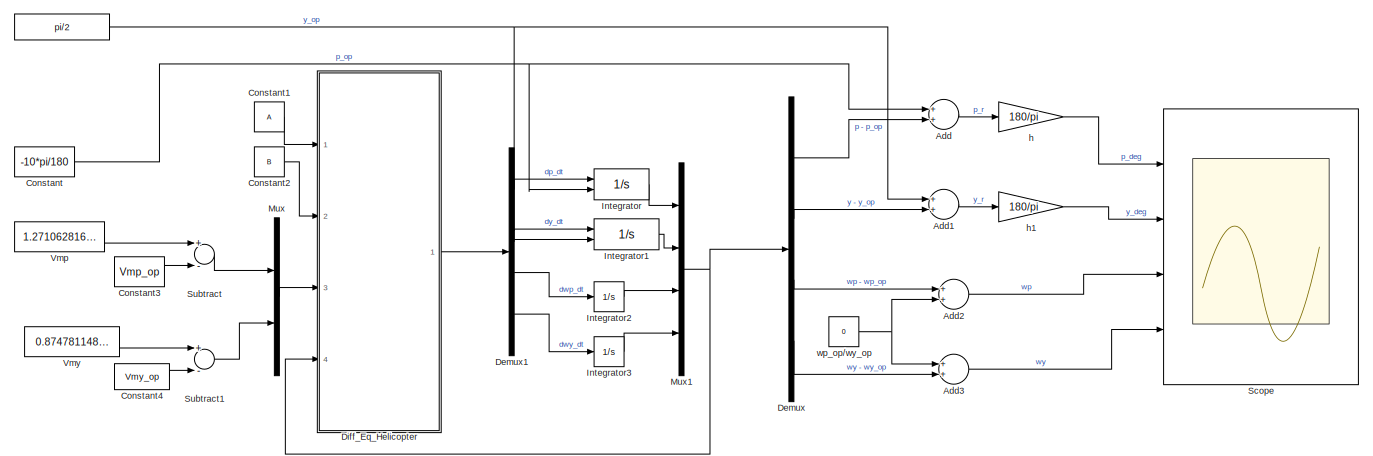
[diagram: root canvas - part 1/2, most of the canvas]
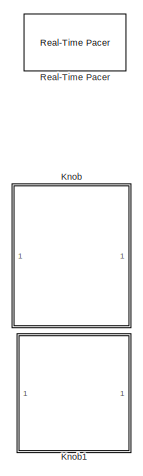
[diagram: root canvas - part 2/2, left side, full height]
MODEL slx_441fe967fca5
KIND model
CONFIG AbsTol = auto
CONFIG EnableMultiTasking = off
CONFIG FixedStep = auto
CONFIG MaxStep = auto
CONFIG MinStep = auto
CONFIG RelTol = 1e-3
CONFIG SampleTimeConstraint = Unconstrained
CONFIG Solver = VariableStepAuto
CONFIG SolverName = VariableStepAuto
CONFIG StartTime = 0.0
CONFIG StopTime = inf
BLOCK [Constant]  
  Value = pi/2
BLOCK [Sum] Add
  InputSameDT = off
  OutDataTypeStr = Inherit: Inherit via internal rule
  Ports = [2, 1]
  SaturateOnIntegerOverflow = off
BLOCK [Sum] Add1
  InputSameDT = off
  OutDataTypeStr = Inherit: Inherit via internal rule
  Ports = [2, 1]
  SaturateOnIntegerOverflow = off
BLOCK [Sum] Add2
  InputSameDT = off
  OutDataTypeStr = Inherit: Inherit via internal rule
  Ports = [2, 1]
  SaturateOnIntegerOverflow = off
BLOCK [Sum] Add3
  InputSameDT = off
  OutDataTypeStr = Inherit: Inherit via internal rule
  Ports = [2, 1]
  SaturateOnIntegerOverflow = off
BLOCK [Constant] Constant
  Value = -10*pi/180
BLOCK [Constant] Constant1
  Value = A
BLOCK [Constant] Constant2
  Value = B
BLOCK [Constant] Constant3
  Value = Vmp_op
BLOCK [Constant] Constant4
  Value = Vmy_op
BLOCK [Demux] Demux
  DisplayOption = bar
  Ports = [1, 4]
BLOCK [Demux] Demux1
  DisplayOption = bar
  Ports = [1, 4]
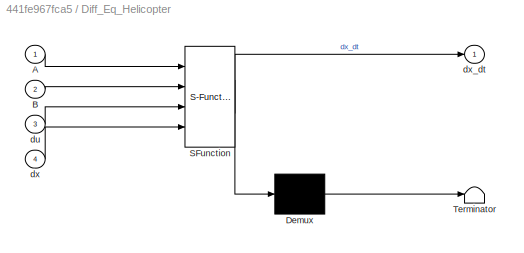
BLOCK [SubSystem] Diff_Eq_Helicopter
  ErrorFcn = Stateflow.Translate.translate
  PermitHierarchicalResolution = ExplicitOnly
  Ports = [4, 1]
  RequestExecContextInheritance = off
  SFBlockType = MATLAB Function
  TreatAsAtomicUnit = on
BLOCK [Demux] Diff_Eq_Helicopter/ Demux 
  Outputs = 1
  Ports = [1, 1]
BLOCK [S-Function] Diff_Eq_Helicopter/ SFunction 
  EnableBusSupport = on
  FunctionName = sf_sfun
  PortCounts = [4 2]
  Ports = [4, 2]
  SFcnIsStateOwnerBlock = off
  SFunctionDeploymentMode = off
  Tag = Stateflow S-Function Helicopter_linear 1
BLOCK [Terminator] Diff_Eq_Helicopter/ Terminator 
BLOCK [Inport] Diff_Eq_Helicopter/A
  IconDisplay = Port number
BLOCK [Inport] Diff_Eq_Helicopter/B
  IconDisplay = Port number
  Port = 2
BLOCK [Inport] Diff_Eq_Helicopter/du
  IconDisplay = Port number
  Port = 3
BLOCK [Inport] Diff_Eq_Helicopter/dx
  IconDisplay = Port number
  Port = 4
BLOCK [Outport] Diff_Eq_Helicopter/dx_dt
  IconDisplay = Port number
BLOCK [Integrator] Integrator
  InitialCondition = -10*pi/180
  InitialConditionSource = external
  LimitOutput = on
  LowerSaturationLimit = -pi/4 - (-10*pi/180)
  Ports = [2, 1]
  UpperSaturationLimit = pi/4 - (-10*pi/180)
BLOCK [Integrator] Integrator1
  InitialCondition = pi/2
  InitialConditionSource = external
  LimitOutput = on
  LowerSaturationLimit = 0 - (pi/2)
  Ports = [2, 1]
  UpperSaturationLimit = pi - (pi/2)
BLOCK [Integrator] Integrator2
  Ports = [1, 1]
  UpperSaturationLimit = pi
BLOCK [Integrator] Integrator3
  Ports = [1, 1]
BLOCK [SubSystem] Knob
  DialogController = hmiCreateDDGDialog
  IsWebBlock = on
  MaskHideContents = on
  Ports = []
  RequestExecContextInheritance = off
BLOCK [SubSystem] Knob1
  DialogController = hmiCreateDDGDialog
  IsWebBlock = on
  MaskHideContents = on
  Ports = []
  RequestExecContextInheritance = off
BLOCK [Mux] Mux
  DisplayOption = bar
  Inputs = 2
  Ports = [2, 1]
BLOCK [Mux] Mux1
  DisplayOption = bar
  Ports = [4, 1]
BLOCK [Reference] Real-Time Pacer  REF=realtime_pacer_lib/Real-Time Pacer
  Ports = []
  SourceBlock = realtime_pacer_lib/Real-Time Pacer
  SourceType = RealTime_Pacer
BLOCK [Scope] Scope
  Floating = off
  NumInputPorts = 4
  Ports = [4]
  ScopeSpecificationString = Simulink.scopes.TimeScopeBlockCfg('CurrentConfiguration', extmgr.ConfigurationSet(extmgr.Configuration('Core','General UI',true,'FigureColor',[1 1 1]),extmgr.Configuration('Core','Source UI',true),extmgr.Configuration('Sources','WiredSimulink',true),extmgr.Configuration('Visuals','Time Domain',true,'SerializedDisplays',{struct('MinYLimReal','-45','MaxYLimReal','45','YLabelReal','pitch angle ','Min...<+3643ch>
BLOCK [Sum] Subtract
  InputSameDT = off
  Inputs = +-
  OutDataTypeStr = Inherit: Inherit via internal rule
  Ports = [2, 1]
  SaturateOnIntegerOverflow = off
BLOCK [Sum] Subtract1
  InputSameDT = off
  Inputs = +-
  OutDataTypeStr = Inherit: Inherit via internal rule
  Ports = [2, 1]
  SaturateOnIntegerOverflow = off
BLOCK [Constant] Vmp
  Value = 1.2710628166062
BLOCK [Constant] Vmy
  Value = 0.8747811482747
BLOCK [Gain] h
  Gain = 180/pi
  OutDataTypeStr = Inherit: Inherit via internal rule
  ParamDataTypeStr = Inherit: Inherit via internal rule
  SaturateOnIntegerOverflow = off
BLOCK [Gain] h1
  Gain = 180/pi
  OutDataTypeStr = Inherit: Inherit via internal rule
  ParamDataTypeStr = Inherit: Inherit via internal rule
  SaturateOnIntegerOverflow = off
BLOCK [Constant] wp_op//wy_op
  Value = 0
NET  :1 -> Add1:1, Integrator1:2
LINE Add1:1 -> h1:1
LINE Add2:1 -> Scope:3
LINE Add3:1 -> Scope:4
LINE Add:1 -> h:1
LINE Constant1:1 -> Diff_Eq_Helicopter:1
LINE Constant2:1 -> Diff_Eq_Helicopter:2
LINE Constant3:1 -> Subtract:2
LINE Constant4:1 -> Subtract1:2
NET Constant:1 -> Add:1, Integrator:2
LINE Demux1:1 -> Integrator:1
LINE Demux1:2 -> Integrator1:1
LINE Demux1:3 -> Integrator2:1
LINE Demux1:4 -> Integrator3:1
LINE Demux:1 -> Add:2
LINE Demux:2 -> Add1:2
LINE Demux:3 -> Add2:1
LINE Demux:4 -> Add3:2
LINE Diff_Eq_Helicopter:1 -> Demux1:1
LINE Integrator1:1 -> Mux1:2
LINE Integrator2:1 -> Mux1:3
LINE Integrator3:1 -> Mux1:4
LINE Integrator:1 -> Mux1:1
NET Mux1:1 -> Demux:1, Diff_Eq_Helicopter:4
LINE Mux:1 -> Diff_Eq_Helicopter:3
LINE Subtract1:1 -> Mux:2
LINE Subtract:1 -> Mux:1
LINE Vmp:1 -> Subtract:1
LINE Vmy:1 -> Subtract1:1
LINE h1:1 -> Scope:2
LINE h:1 -> Scope:1
NET wp_op//wy_op:1 -> Add2:2, Add3:1
note: NET lines group one-source signal fan-out (src -> all destinations, sorted); 1:1 wires keep LINE
CHART Diff_Eq_Helicopter states=1 transitions=1
  STATE_LABEL 'eML_blk_kernel()'
  STATE_LABEL 'SCRIPT:\nfunction dx_dt = fcn(A,B,du,dx)\n\ndx_dt =A*dx + B*(du);\n'
